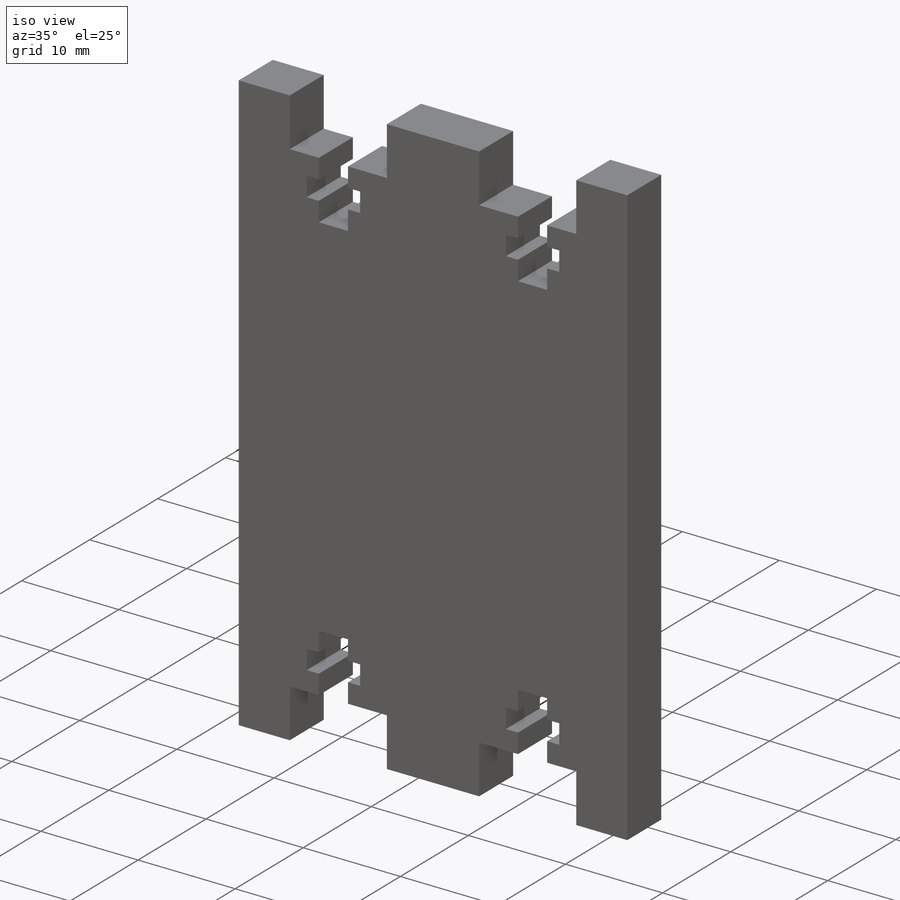
[diagram: iso view]
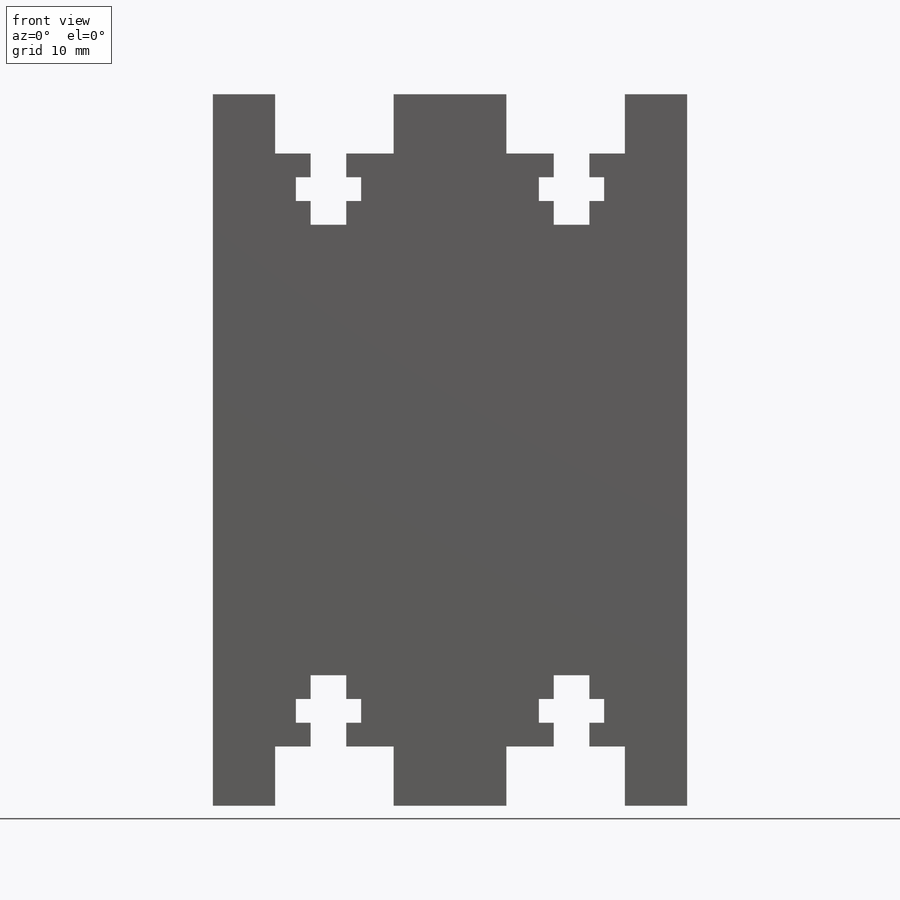
[diagram: front view]
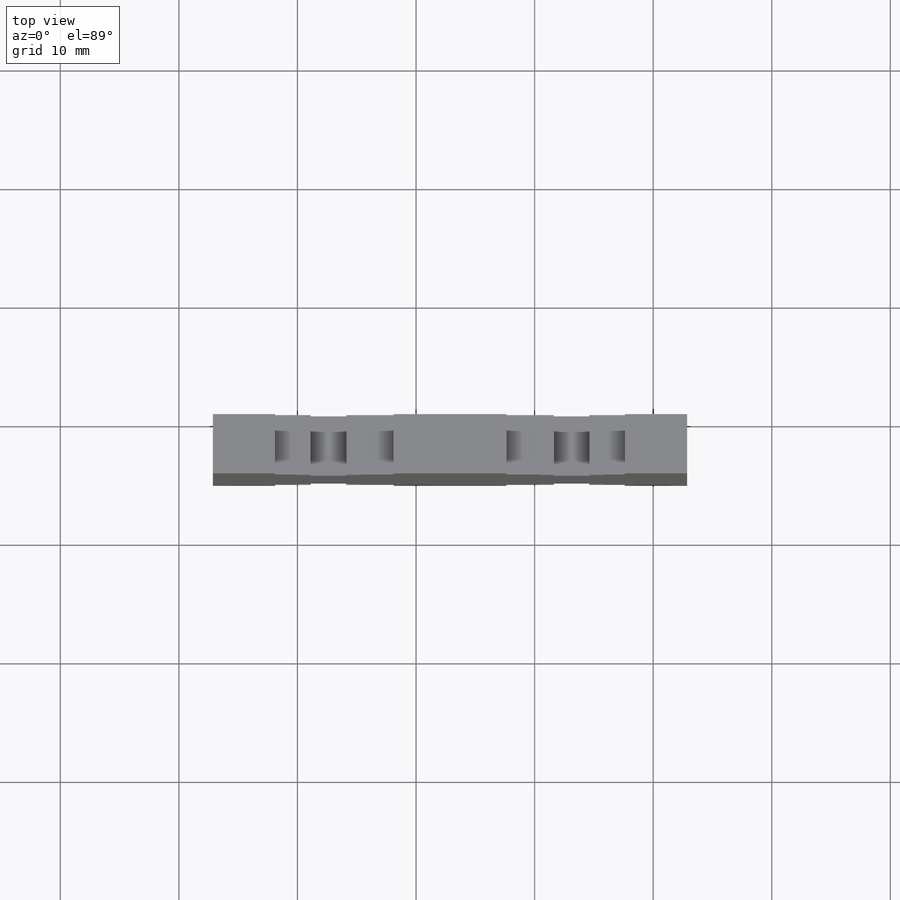
[diagram: top view]
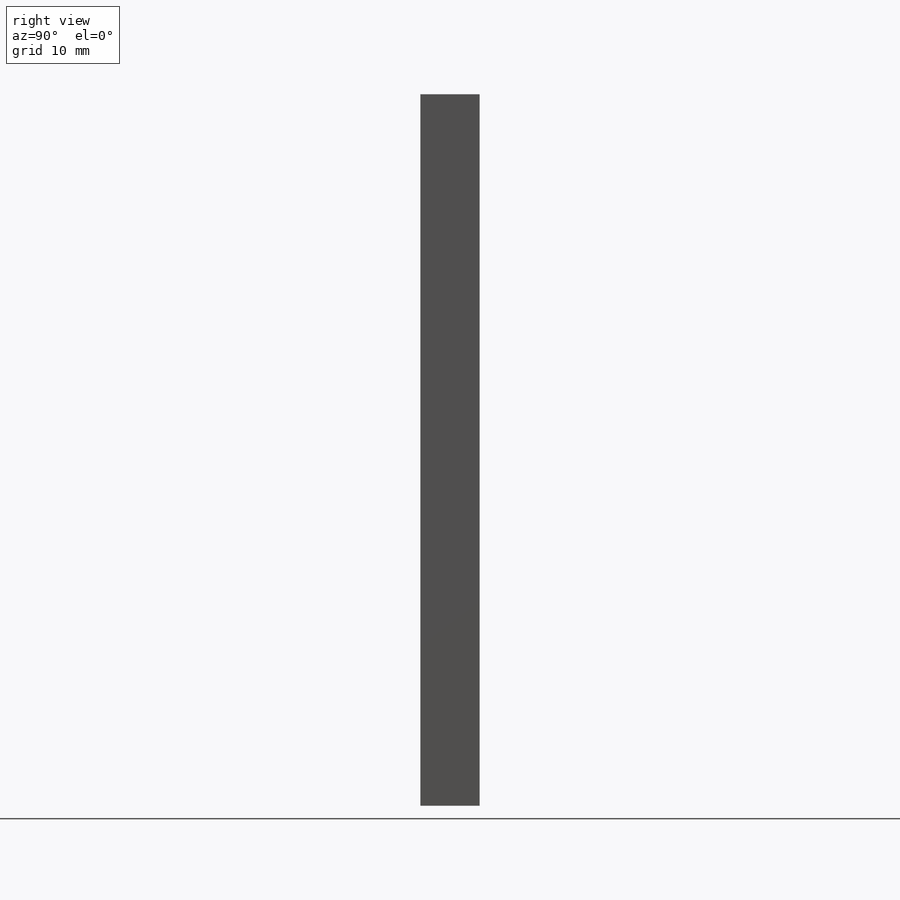
[diagram: right view]
SOLIDWORKS PART (.sldprt)
format: sldprt  version: not decoded by parser v0  size: 231,936 bytes
history: native  units: mm
features: sketch x3, extrude x2, material x1, cut_extrude x1, plane x1, mirror x1 (+12 scaffold rows collapsed)
feature tree (21):
  scaffold x12  (default folders/planes/origin — collapsed)
  material  "Material <not specified>"
  sketch  "Sketch1"  dims[D1=40.0mm D2=55.0mm]
  extrude  "Boss-Extrude1"  Depth=5mm
  sketch  "Sketch2"  dims[c1.D1=2.0mm c1.D2=5.5mm c1.D3=3.0mm c1.D4=6.0mm c1.D6=5.0mm c1.D7=3.0mm c1.D8=~12.369317mm c2.D8=~14.036243deg c3.D8=4.0mm c3.D9=4.0mm c3.D10=3.0mm c3.D11=15.0mm c3.D5=2.0]
  cut_extrude  "Cut-Extrude1"  Depth=10mm
  extrude  "Boss-Extrude2"  [1 undecoded]
  sketch  "Sketch2<3>"  dims[D1=5.0mm]
  plane  "Plane1"
  mirror  "Mirror1"
decode coverage: 5 of 7 modeling features carry decoded parameters
note: ~ marks probable driven/reference dimensions
note: 1 parameter value undecoded
note: suppression state not decoded; provenance and decode notes live in map.json
